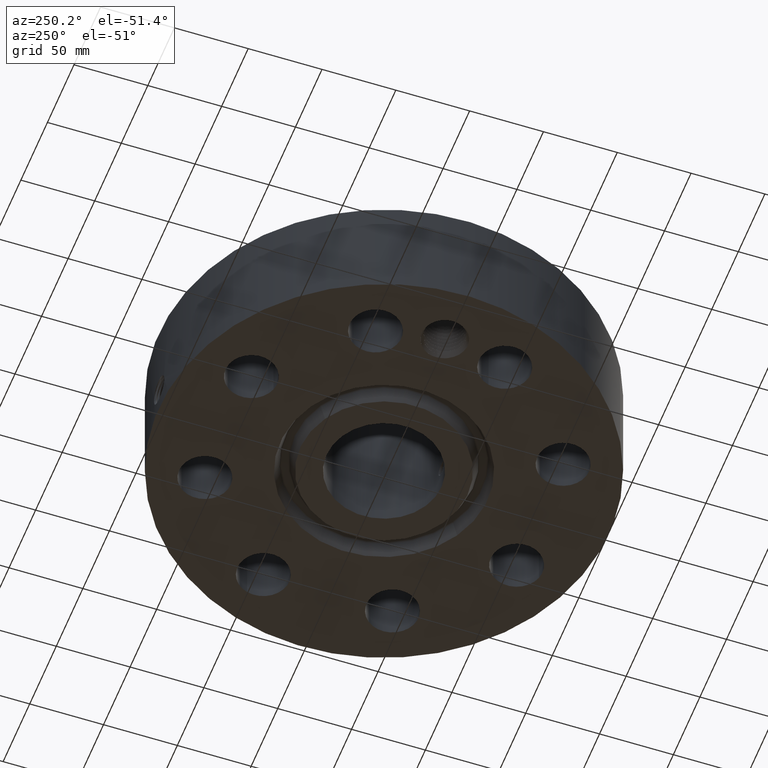
[diagram: clean part render]
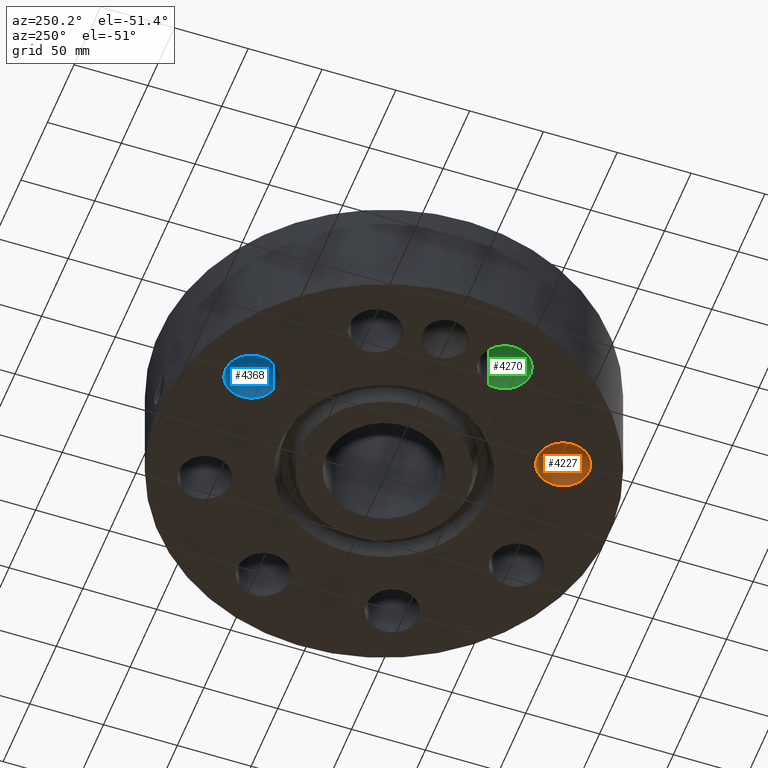
[diagram: same view with three faces highlighted in distinct colors, each labeled with its STEP entity id]
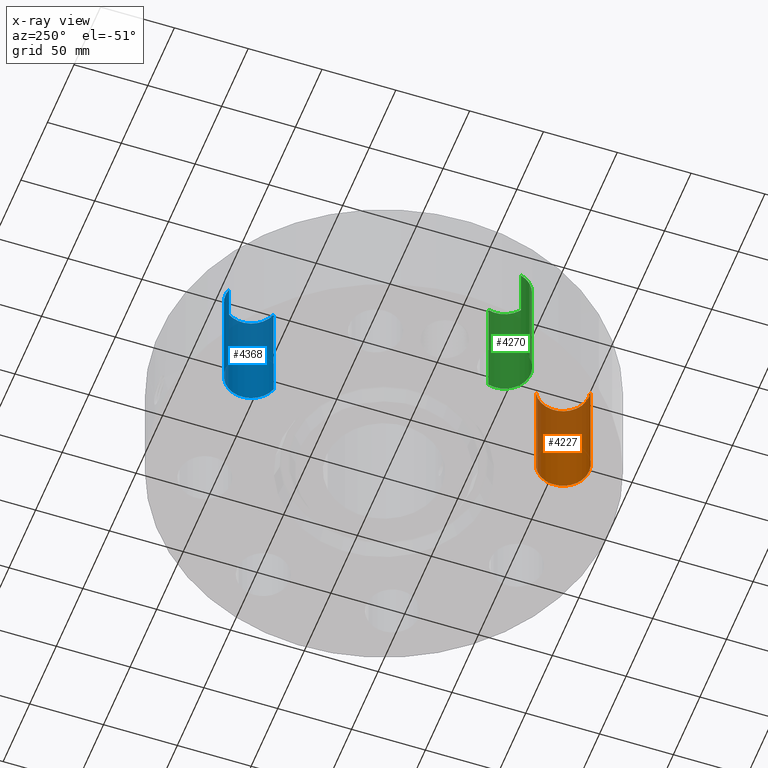
[diagram: x-ray of the same camera — body ghosted, the three highlighted faces saturated]
A machine part, auxiliary view with three faces highlighted in distinct colors.
The next image is the same camera in x-ray (body ghosted, the three faces saturated) — at least one of them is partly hidden behind the body in this view.
Their STEP definitions:

[orange] entity #4227 — the highlighted cylindrical surface (edge-blend (fillet) strip) has radius 17.526 mm, axis along (0, -0, -1).
#3036=AXIS2_PLACEMENT_3D('Circle Axis2P3D',#3034,#3035,$) ;
#4200=AXIS2_PLACEMENT_3D('Cylinder Axis2P3D',#4197,#4198,#4199) ;
#4211=AXIS2_PLACEMENT_3D('Circle Axis2P3D',#4209,#4210,$) ;
#3029=CARTESIAN_POINT('Vertex',(-2.05287906729,-4.76298986402,2.99500000001)) ;
#3031=CARTESIAN_POINT('Vertex',(-1.39127182401,-3.55192592861,2.99500000001)) ;
#3034=CARTESIAN_POINT('Axis2P3D Location',(-1.72207544565,-4.15745789632,2.99500000001)) ;
#4197=CARTESIAN_POINT('Axis2P3D Location',(-1.72207544565,-4.15745789632,2.99106299214)) ;
#4202=CARTESIAN_POINT('Line Origine',(-1.39127182401,-3.55192592861,1.49750000001)) ;
#4206=CARTESIAN_POINT('Vertex',(-1.39127182401,-3.55192592861,0.)) ;
#4209=CARTESIAN_POINT('Axis2P3D Location',(-1.72207544565,-4.15745789632,0.)) ;
#4213=CARTESIAN_POINT('Vertex',(-2.05287906729,-4.76298986402,0.)) ;
#4216=CARTESIAN_POINT('Line Origine',(-2.05287906729,-4.76298986402,1.49750000001)) ;
#3035=DIRECTION('Axis2P3D Direction',(0.,0.,-0.0393700787402)) ;
#4198=DIRECTION('Axis2P3D Direction',(0.,-0.,-0.0393700787402)) ;
#4199=DIRECTION('Axis2P3D XDirection',(-0.0188750212049,-0.0345504945626,0.)) ;
#4203=DIRECTION('Vector Direction',(0.,0.,-0.0393700787402)) ;
#4210=DIRECTION('Axis2P3D Direction',(0.,-0.,-0.0393700787402)) ;
#4217=DIRECTION('Vector Direction',(0.,0.,-0.0393700787402)) ;
#4204=VECTOR('Line Direction',#4203,0.0393700787402) ;
#4218=VECTOR('Line Direction',#4217,0.0393700787402) ;
#4222=ORIENTED_EDGE('',*,*,#4208,.F.) ;
#4223=ORIENTED_EDGE('',*,*,#4215,.T.) ;
#4224=ORIENTED_EDGE('',*,*,#4220,.T.) ;
#4225=ORIENTED_EDGE('',*,*,#3038,.F.) ;
#4227=ADVANCED_FACE('PartBody',(#4226),#4201,.F.) ;
#3037=CIRCLE('generated circle',#3036,0.690000000003) ;
#4212=CIRCLE('generated circle',#4211,0.690000000003) ;
#4201=CYLINDRICAL_SURFACE('generated cylinder',#4200,0.690000000003) ;
#3038=EDGE_CURVE('',#3032,#3030,#3037,.T.) ;
#4208=EDGE_CURVE('',#4207,#3032,#4205,.F.) ;
#4215=EDGE_CURVE('',#4207,#4214,#4212,.T.) ;
#4220=EDGE_CURVE('',#4214,#3030,#4219,.F.) ;
#4221=EDGE_LOOP('',(#4222,#4223,#4224,#4225)) ;
#4226=FACE_OUTER_BOUND('',#4221,.T.) ;
#4205=LINE('Line',#4202,#4204) ;
#4219=LINE('Line',#4216,#4218) ;
#3030=VERTEX_POINT('',#3029) ;
#3032=VERTEX_POINT('',#3031) ;
#4207=VERTEX_POINT('',#4206) ;
#4214=VERTEX_POINT('',#4213) ;

[blue] entity #4368 — the highlighted cylindrical surface (edge-blend (fillet) strip) has radius 17.526 mm, axis along (0, 0, -1).
#3081=AXIS2_PLACEMENT_3D('Circle Axis2P3D',#3079,#3080,$) ;
#4329=AXIS2_PLACEMENT_3D('Cylinder Axis2P3D',#4326,#4327,#4328) ;
#4359=AXIS2_PLACEMENT_3D('Circle Axis2P3D',#4357,#4358,$) ;
#3079=CARTESIAN_POINT('Axis2P3D Location',(-1.72207544565,4.15745789632,2.99500000001)) ;
#3083=CARTESIAN_POINT('Vertex',(-1.91633772214,4.81954714101,2.99500000001)) ;
#3085=CARTESIAN_POINT('Vertex',(-1.52781316916,3.49536865163,2.99500000001)) ;
#4326=CARTESIAN_POINT('Axis2P3D Location',(-1.72207544565,4.15745789632,2.99106299214)) ;
#4331=CARTESIAN_POINT('Line Origine',(-1.52781316916,3.49536865163,1.49750000001)) ;
#4335=CARTESIAN_POINT('Vertex',(-1.52781316916,3.49536865163,0.)) ;
#4342=CARTESIAN_POINT('Vertex',(-1.91633772214,4.81954714101,0.)) ;
#4345=CARTESIAN_POINT('Line Origine',(-1.91633772214,4.81954714101,1.49750000001)) ;
#4357=CARTESIAN_POINT('Axis2P3D Location',(-1.72207544565,4.15745789632,0.)) ;
#3080=DIRECTION('Axis2P3D Direction',(0.,0.,-0.0393700787402)) ;
#4327=DIRECTION('Axis2P3D Direction',(0.,0.,-0.0393700787402)) ;
#4328=DIRECTION('Axis2P3D XDirection',(-0.0110842335096,0.0377775444876,0.)) ;
#4332=DIRECTION('Vector Direction',(0.,0.,-0.0393700787402)) ;
#4346=DIRECTION('Vector Direction',(0.,0.,-0.0393700787402)) ;
#4358=DIRECTION('Axis2P3D Direction',(0.,0.,-0.0393700787402)) ;
#4333=VECTOR('Line Direction',#4332,0.0393700787402) ;
#4347=VECTOR('Line Direction',#4346,0.0393700787402) ;
#4363=ORIENTED_EDGE('',*,*,#4349,.F.) ;
#4364=ORIENTED_EDGE('',*,*,#4361,.T.) ;
#4365=ORIENTED_EDGE('',*,*,#4337,.T.) ;
#4366=ORIENTED_EDGE('',*,*,#3087,.F.) ;
#4368=ADVANCED_FACE('PartBody',(#4367),#4330,.F.) ;
#3082=CIRCLE('generated circle',#3081,0.690000000003) ;
#4360=CIRCLE('generated circle',#4359,0.690000000003) ;
#4330=CYLINDRICAL_SURFACE('generated cylinder',#4329,0.690000000003) ;
#3087=EDGE_CURVE('',#3084,#3086,#3082,.T.) ;
#4337=EDGE_CURVE('',#4336,#3086,#4334,.F.) ;
#4349=EDGE_CURVE('',#4343,#3084,#4348,.F.) ;
#4361=EDGE_CURVE('',#4343,#4336,#4360,.T.) ;
#4362=EDGE_LOOP('',(#4363,#4364,#4365,#4366)) ;
#4367=FACE_OUTER_BOUND('',#4362,.T.) ;
#4334=LINE('Line',#4331,#4333) ;
#4348=LINE('Line',#4345,#4347) ;
#3084=VERTEX_POINT('',#3083) ;
#3086=VERTEX_POINT('',#3085) ;
#4336=VERTEX_POINT('',#4335) ;
#4343=VERTEX_POINT('',#4342) ;

[green] entity #4270 — the highlighted cylindrical surface (edge-blend (fillet) strip) has radius 17.526 mm, axis along (-0, 0, -1).
#3054=AXIS2_PLACEMENT_3D('Circle Axis2P3D',#3052,#3053,$) ;
#4243=AXIS2_PLACEMENT_3D('Cylinder Axis2P3D',#4240,#4241,#4242) ;
#4254=AXIS2_PLACEMENT_3D('Circle Axis2P3D',#4252,#4253,$) ;
#3047=CARTESIAN_POINT('Vertex',(-4.81954714101,-1.91633772214,2.99500000001)) ;
#3049=CARTESIAN_POINT('Vertex',(-3.49536865163,-1.52781316916,2.99500000001)) ;
#3052=CARTESIAN_POINT('Axis2P3D Location',(-4.15745789632,-1.72207544565,2.99500000001)) ;
#4240=CARTESIAN_POINT('Axis2P3D Location',(-4.15745789632,-1.72207544565,2.99106299214)) ;
#4245=CARTESIAN_POINT('Line Origine',(-3.49536865163,-1.52781316916,1.49750000001)) ;
#4249=CARTESIAN_POINT('Vertex',(-3.49536865163,-1.52781316916,0.)) ;
#4252=CARTESIAN_POINT('Axis2P3D Location',(-4.15745789632,-1.72207544565,0.)) ;
#4256=CARTESIAN_POINT('Vertex',(-4.81954714101,-1.91633772214,0.)) ;
#4259=CARTESIAN_POINT('Line Origine',(-4.81954714101,-1.91633772214,1.49750000001)) ;
#3053=DIRECTION('Axis2P3D Direction',(0.,0.,-0.0393700787402)) ;
#4241=DIRECTION('Axis2P3D Direction',(-0.,0.,-0.0393700787402)) ;
#4242=DIRECTION('Axis2P3D XDirection',(-0.0377775444876,-0.0110842335096,0.)) ;
#4246=DIRECTION('Vector Direction',(0.,0.,-0.0393700787402)) ;
#4253=DIRECTION('Axis2P3D Direction',(-0.,0.,-0.0393700787402)) ;
#4260=DIRECTION('Vector Direction',(0.,0.,-0.0393700787402)) ;
#4247=VECTOR('Line Direction',#4246,0.0393700787402) ;
#4261=VECTOR('Line Direction',#4260,0.0393700787402) ;
#4265=ORIENTED_EDGE('',*,*,#4251,.F.) ;
#4266=ORIENTED_EDGE('',*,*,#4258,.T.) ;
#4267=ORIENTED_EDGE('',*,*,#4263,.T.) ;
#4268=ORIENTED_EDGE('',*,*,#3056,.F.) ;
#4270=ADVANCED_FACE('PartBody',(#4269),#4244,.F.) ;
#3055=CIRCLE('generated circle',#3054,0.690000000003) ;
#4255=CIRCLE('generated circle',#4254,0.690000000003) ;
#4244=CYLINDRICAL_SURFACE('generated cylinder',#4243,0.690000000003) ;
#3056=EDGE_CURVE('',#3050,#3048,#3055,.T.) ;
#4251=EDGE_CURVE('',#4250,#3050,#4248,.F.) ;
#4258=EDGE_CURVE('',#4250,#4257,#4255,.T.) ;
#4263=EDGE_CURVE('',#4257,#3048,#4262,.F.) ;
#4264=EDGE_LOOP('',(#4265,#4266,#4267,#4268)) ;
#4269=FACE_OUTER_BOUND('',#4264,.T.) ;
#4248=LINE('Line',#4245,#4247) ;
#4262=LINE('Line',#4259,#4261) ;
#3048=VERTEX_POINT('',#3047) ;
#3050=VERTEX_POINT('',#3049) ;
#4250=VERTEX_POINT('',#4249) ;
#4257=VERTEX_POINT('',#4256) ;